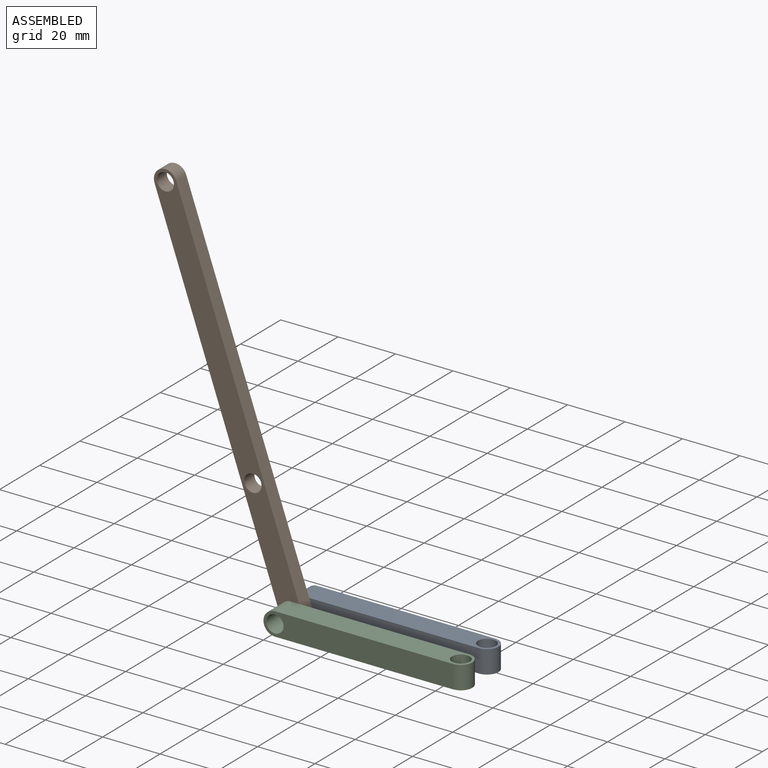
[diagram: assembled view]
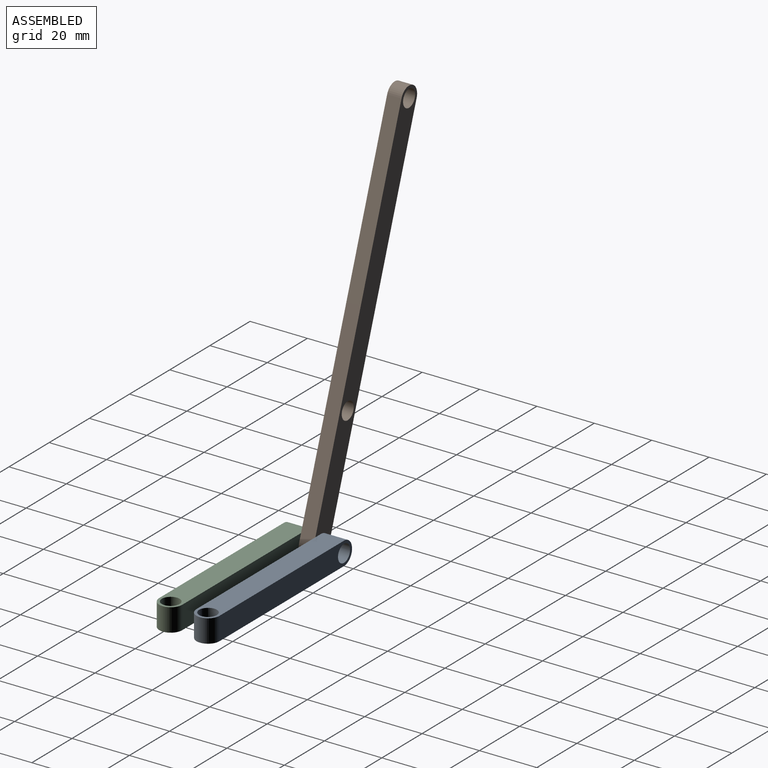
[diagram: assembled view, second angle]
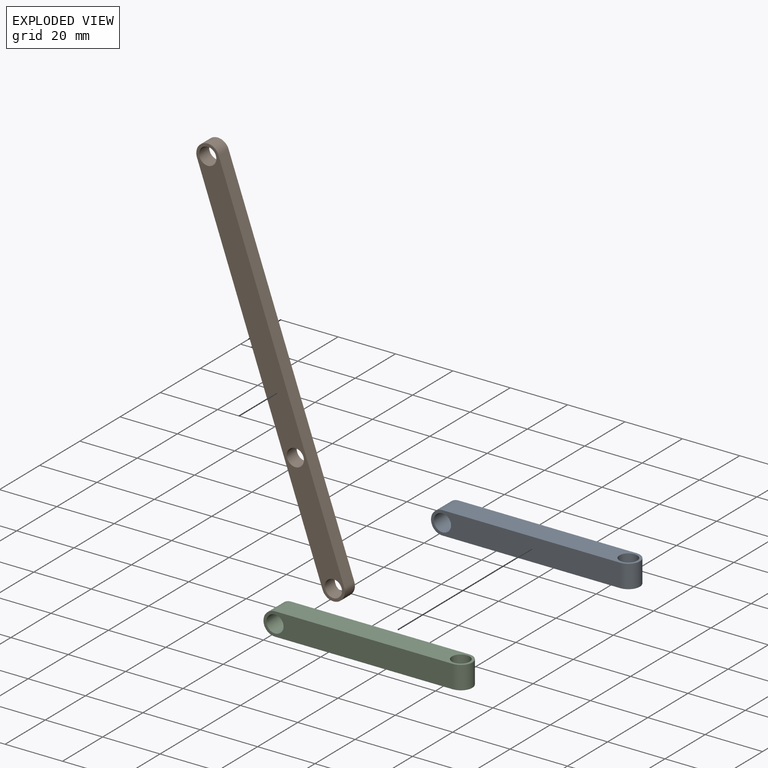
[diagram: exploded view]
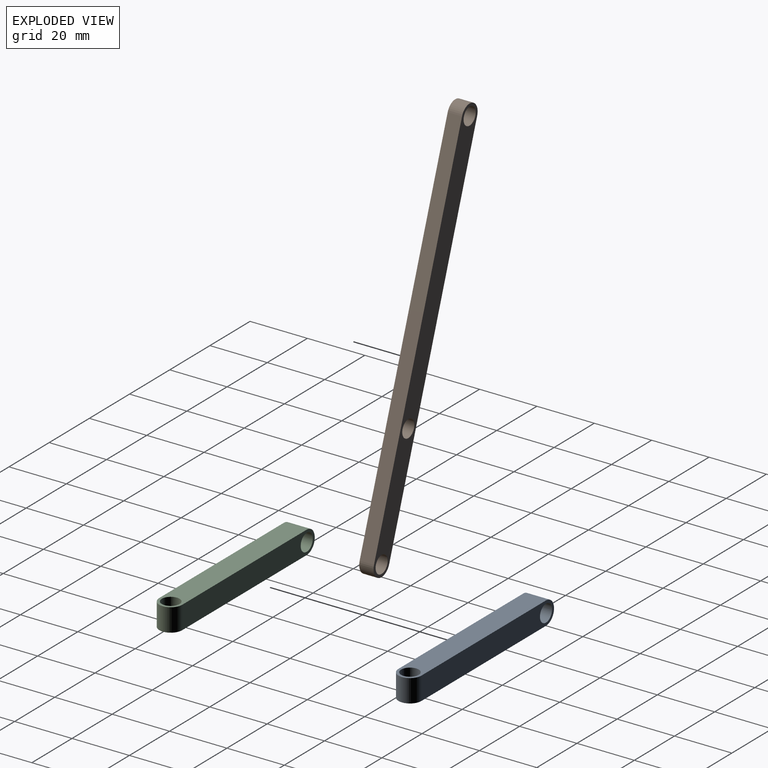
[diagram: exploded view, second angle]
ASSEMBLY  parts=3 mates=2
PART A: 8 faces, bbox 70x8x8 mm
  f0: plane 66x8mm, normal (0,1,0), area 492.9mm2, adj f3,f4,f5,f6,f7
  f1: plane 66x8mm, normal (0,-1,0), area 492.9mm2, adj f3,f4,f5,f6,f7
  f2: cylinder r=3.1mm len=8mm, axis (0,0,-1), area 155.8mm2, adj f3,f4
  f3: plane 66x8mm, normal (0,0,1), area 490.9mm2, adj f0,f1,f2,f6,f7
  f4: plane 66x8mm, normal (0,0,-1), area 490.9mm2, adj f0,f1,f2,f6,f7
  f5: cylinder r=3mm len=8mm, axis (0,1,0), area 150.8mm2, adj f0,f1
  f6: cylinder r=4mm len=8mm, axis (0,0,-1), area 100.5mm2, adj f0,f1,f3,f4
  f7: cylinder r=4mm len=8mm, axis (0,1,0), area 100.5mm2, adj f0,f1,f3,f4
PART B: 9 faces, bbox 140x8x5 mm
  f0: plane 132x5mm, normal (0,1,0), area 660mm2, adj f5,f6,f7,f8
  f1: plane 132x5mm, normal (0,-1,0), area 660mm2, adj f5,f6,f7,f8
  f2: cylinder r=3mm len=6mm, axis (0,0,-1), area 94.2mm2, adj f5,f6
  f3: cylinder r=3mm len=6mm, axis (0,0,-1), area 94.2mm2, adj f5,f6
  f4: cylinder r=3mm len=6mm, axis (0,0,-1), area 94.2mm2, adj f5,f6
  f5: plane 140x8mm, normal (0,0,1), area 1021.4mm2, adj f0,f1,f2,f3,f4,f7,f8
  f6: plane 140x8mm, normal (0,0,-1), area 1021.4mm2, adj f0,f1,f2,f3,f4,f7,f8
  f7: cylinder r=4mm len=8mm, axis (0,0,-1), area 62.8mm2, adj f0,f1,f5,f6
  f8: cylinder r=4mm len=8mm, axis (0,0,-1), area 62.8mm2, adj f0,f1,f5,f6
PART C: same geometry as A
PLACE A t=(-6.7,13,22.3)mm fixed
PLACE B rot(axis=(0.45,-0.63,0.63),131.8deg) t=(-15.32,12.08,26.3)mm
PLACE C t=(-6.7,0,22.3)mm fixed
MATE cylindrical B.f2 <-> C.f5  axis (0,-1,0) through (-15.32,7.08,26.3)mm
MATE cylindrical B.f2 <-> A.f5  axis (0,1,0) through (-15.32,12.08,26.3)mm
